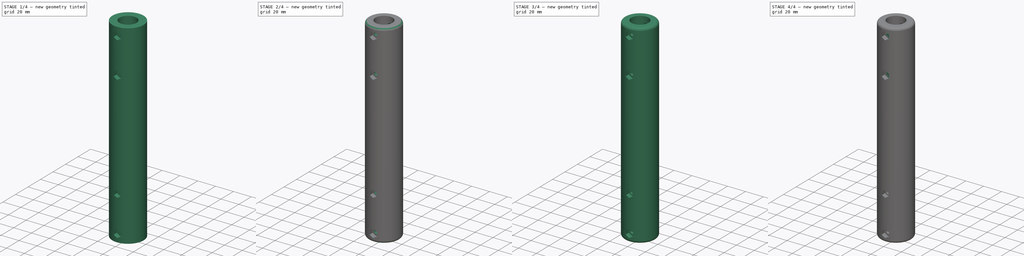
[diagram: build sequence overview — one tinted view per stage of 4, left to right]
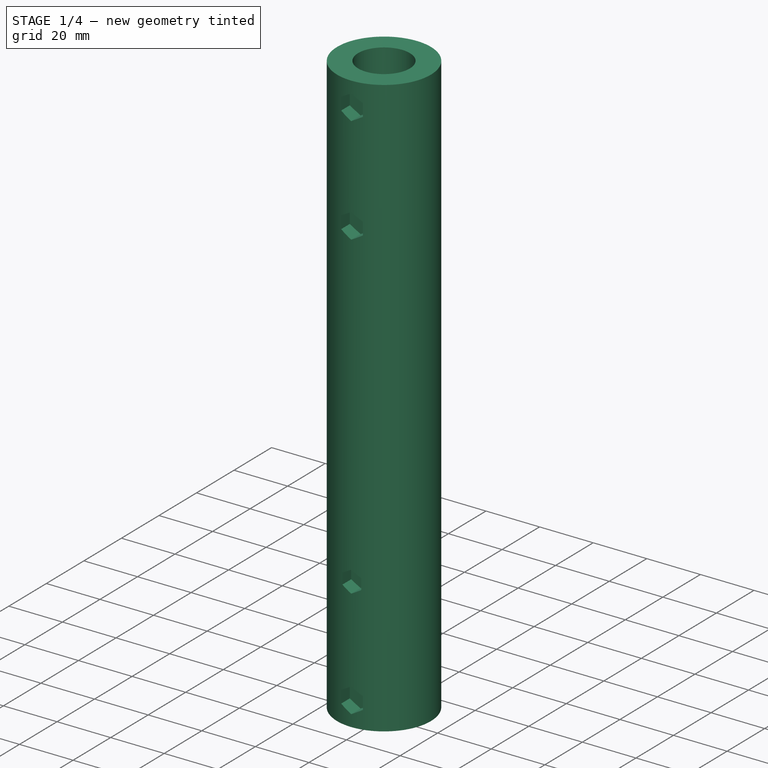
[diagram: stage 1 of 4 — iso view after this stage's code; geometry added in this stage tinted green]
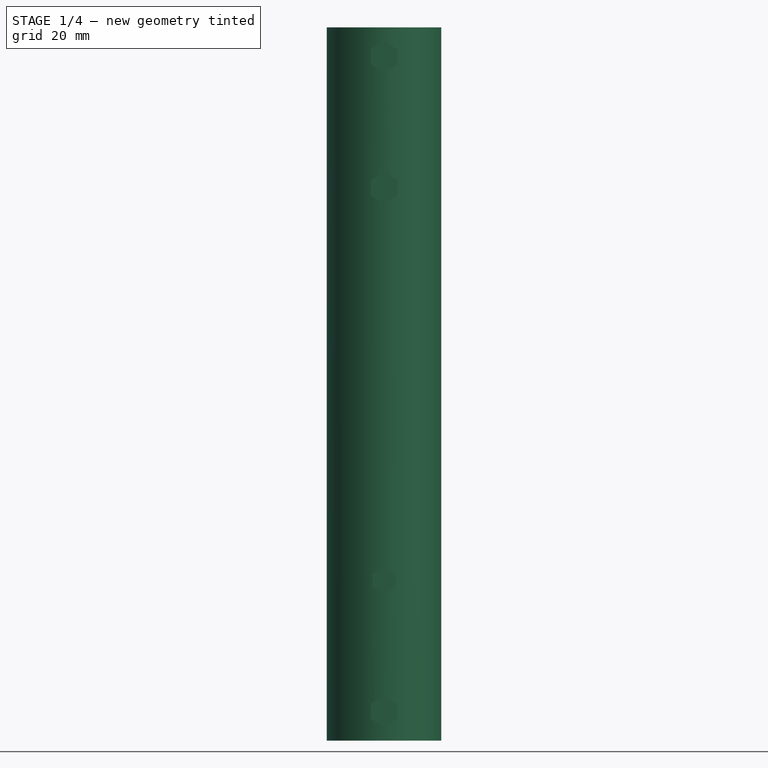
[diagram: stage 1 of 4 — front view after this stage's code; geometry added in this stage tinted green]
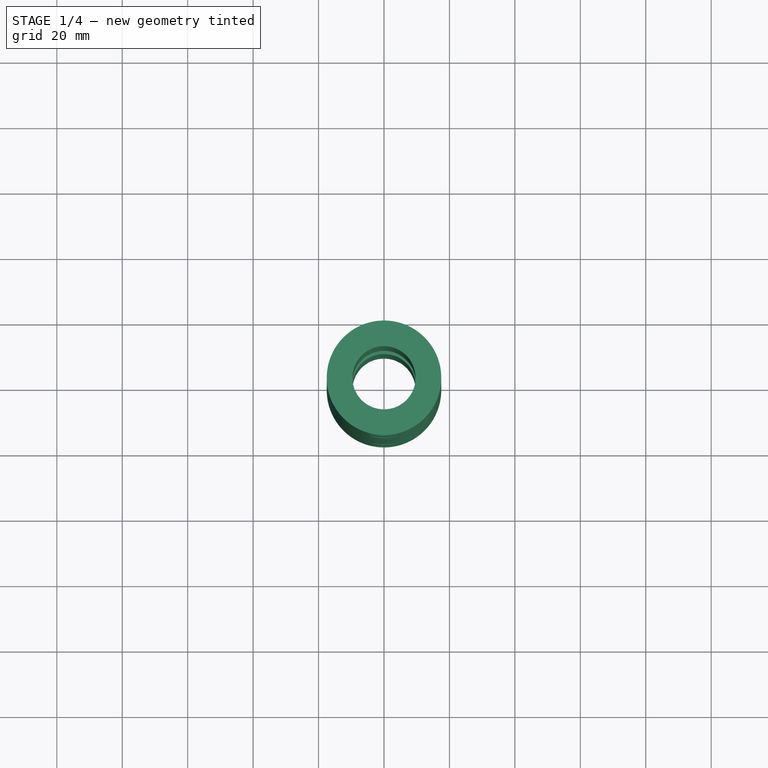
[diagram: stage 1 of 4 — top view after this stage's code; geometry added in this stage tinted green]
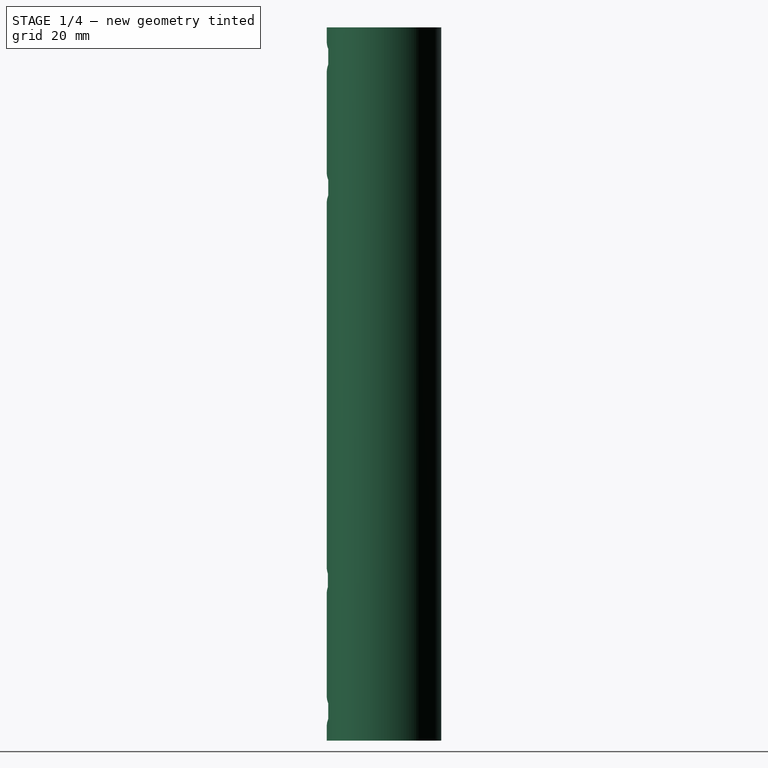
[diagram: stage 1 of 4 — right view after this stage's code; geometry added in this stage tinted green]
FCSTD DOCUMENT  (FreeCAD 1.0R39109 (Git))
Label: pvc enhancement
License: All rights reserved
LicenseURL: https://en.wikipedia.org/wiki/All_rights_reserved
objects: Sketcher::SketchObject×6, PartDesign::Pocket×4, Part::FeaturePython×3, PartDesign::Pad×2, PartDesign::Fillet×2, PartDesign::Plane×2, PartDesign::Body×2, App::DocumentObjectGroup×1
note: 43 computed .brp shape members not serialized (recipe doc carries the construction recipe); baked Part::Feature solids carry a one-line shape summary decoded from their .brp

FEATURE [PartDesign::Body] Body
  AllowCompound = false
  Group = -> [Sketch,Pad,Fillet,DatumPlane,Sketch001,Pocket]
  Origin = -> Origin
  Tip = -> Pocket
FEATURE [Sketcher::SketchObject] Sketch002
  ArcFitTolerance = 1e-06
  AttachmentSupport = -> [XY_Plane001]
  FullyConstrained = true
  MakeInternals = false
  MapMode = 5
  sketch-geometry (2):
    g0: Circle CenterX=0 CenterY=0 CenterZ=0 NormalX=0 NormalY=0 NormalZ=1 AngleXU=0 Radius=9.65
    g1: Circle CenterX=0 CenterY=0 CenterZ=0 NormalX=0 NormalY=0 NormalZ=1 AngleXU=0 Radius=17.5
  constraints (4):
    c: Coincident(g0,g-1)
    c: Diameter(g0) = 19.3
    c: Coincident(g1,g0)
    c: Diameter(g1) = 35
FEATURE [PartDesign::Pad] Pad001
  Direction = (0,0,1)
  Length = 109
  Length2 = 109
  Profile = -> Sketch002
  ReferenceAxis = -> Sketch002 [N_Axis]
  Refine = true
  Suppressed = false
  Type = 4
  expr: Length = 109
FEATURE [Sketcher::SketchObject] Sketch003
  ArcFitTolerance = 1e-06
  AttachmentSupport = -> [XY_Plane001]
  FullyConstrained = true
  MakeInternals = false
  MapMode = 5
  sketch-geometry (2):
    g0: Circle CenterX=0 CenterY=0 CenterZ=0 NormalX=0 NormalY=0 NormalZ=1 AngleXU=0 Radius=6
    g1: Circle CenterX=0 CenterY=0 CenterZ=0 NormalX=0 NormalY=0 NormalZ=1 AngleXU=0 Radius=11.25
  constraints (4):
    c: Coincident(g0,g-1)
    c: Coincident(g1,g0)
    c: Diameter(g0) = 12
    c: Diameter(g1) = 22.5
FEATURE [PartDesign::Pocket] Pocket001
  BaseFeature = -> Pad001
  Direction = (0,0,-1)
  Length = 28
  Length2 = 28
  Profile = -> Sketch003
  ReferenceAxis = -> Sketch003 [N_Axis]
  Refine = true
  Suppressed = false
  Type = 4
FEATURE [PartDesign::Plane] DatumPlane001
  AttachmentOffset = pos=(0,0,17.5) rot=(0,0,1;0rad)
  AttachmentSupport = -> [XZ_Plane001]
  Length = 70.8806
  MapMode = 5
  Placement = pos=(0,-17.5,3.9e-15) rot=(1,0,0;1.5708rad)
  ResizeMode = 0
  Width = 238.881
  expr: .AttachmentOffset.Base.z = 35 / 2
FEATURE [Sketcher::SketchObject] Sketch004
  ArcFitTolerance = 1e-06
  AttachmentSupport = -> [DatumPlane001]
  FullyConstrained = true
  MakeInternals = false
  MapMode = 5
  Placement = pos=(0,-17.5,3.9e-15) rot=(1,0,0;1.5708rad)
  sketch-geometry (28):
    g0: LineSegment StartX=0 StartY=95.3333 StartZ=0 EndX=4.04145 EndY=97.6667 EndZ=0
    g1: LineSegment StartX=4.04145 StartY=97.6667 StartZ=0 EndX=4.04145 EndY=102.333 EndZ=0
    g2: LineSegment StartX=4.04145 StartY=102.333 StartZ=0 EndX=9e-16 EndY=104.667 EndZ=0
    g3: LineSegment StartX=9e-16 StartY=104.667 StartZ=0 EndX=-4.04145 EndY=102.333 EndZ=0
    g4: LineSegment StartX=-4.04145 StartY=102.333 StartZ=0 EndX=-4.04145 EndY=97.6667 EndZ=0
    g5: LineSegment StartX=-4.04145 StartY=97.6667 StartZ=0 EndX=0 EndY=95.3333 EndZ=0
    g6: Circle [constr] CenterX=0 CenterY=100 CenterZ=0 NormalX=0 NormalY=0 NormalZ=1 AngleXU=0 Radius=4.66667
    g7: LineSegment StartX=4.04145 StartY=57.6667 StartZ=0 EndX=4.04145 EndY=62.3333 EndZ=0
    g8: LineSegment StartX=4.04145 StartY=62.3333 StartZ=0 EndX=0 EndY=64.6667 EndZ=0
    g9: LineSegment StartX=0 StartY=64.6667 StartZ=0 EndX=-4.04145 EndY=62.3333 EndZ=0
    g10: LineSegment StartX=-4.04145 StartY=62.3333 StartZ=0 EndX=-4.04145 EndY=57.6667 EndZ=0
    g11: LineSegment StartX=-4.04145 StartY=57.6667 StartZ=0 EndX=1.3971e-11 EndY=55.3333 EndZ=0
    g12: LineSegment StartX=1.3971e-11 StartY=55.3333 StartZ=0 EndX=4.04145 EndY=57.6667 EndZ=0
    g13: Circle [constr] CenterX=0 CenterY=60 CenterZ=0 NormalX=0 NormalY=0 NormalZ=1 AngleXU=0 Radius=4.66667
    g14: LineSegment StartX=2.09e-14 StartY=-64.0415 StartZ=0 EndX=3.5 EndY=-62.0207 EndZ=0
    g15: LineSegment StartX=3.5 StartY=-62.0207 StartZ=0 EndX=3.5 EndY=-57.9793 EndZ=0
    g16: LineSegment StartX=3.5 StartY=-57.9793 StartZ=0 EndX=0 EndY=-55.9585 EndZ=0
    g17: LineSegment StartX=0 StartY=-55.9585 StartZ=0 EndX=-3.5 EndY=-57.9793 EndZ=0
    g18: LineSegment StartX=-3.5 StartY=-57.9793 StartZ=0 EndX=-3.5 EndY=-62.0207 EndZ=0
    g19: LineSegment StartX=-3.5 StartY=-62.0207 StartZ=0 EndX=2.09e-14 EndY=-64.0415 EndZ=0
    g20: Circle [constr] CenterX=0 CenterY=-60 CenterZ=0 NormalX=0 NormalY=0 NormalZ=1 AngleXU=0 Radius=4.04145
    g21: LineSegment StartX=4.04145 StartY=-102.333 StartZ=0 EndX=4.04145 EndY=-97.6667 EndZ=0
    g22: LineSegment StartX=4.04145 StartY=-97.6667 StartZ=0 EndX=1.43e-13 EndY=-95.3333 EndZ=0
    g23: LineSegment StartX=1.43e-13 StartY=-95.3333 StartZ=0 EndX=-4.04145 EndY=-97.6667 EndZ=0
    g24: LineSegment StartX=-4.04145 StartY=-97.6667 StartZ=0 EndX=-4.04145 EndY=-102.333 EndZ=0
    g25: LineSegment StartX=-4.04145 StartY=-102.333 StartZ=0 EndX=-8.216e-13 EndY=-104.667 EndZ=0
    g26: LineSegment StartX=-8.216e-13 StartY=-104.667 StartZ=0 EndX=4.04145 EndY=-102.333 EndZ=0
    g27: Circle [constr] CenterX=-2.03e-13 CenterY=-100 CenterZ=0 NormalX=0 NormalY=0 NormalZ=1 AngleXU=0 Radius=4.66667
  constraints (68):
    c: Coincident(g0,g1)
    c: Coincident(g1,g2)
    c: Coincident(g2,g3)
    c: Coincident(g3,g4)
    c: Coincident(g4,g5)
    c: Coincident(g5,g0)
    c: Equal(g0, g1-g5) x5
    c: PointOnObject(g0,g6)
    c: PointOnObject(g1,g6)
    c: PointOnObject(g2,g6)
    c: PointOnObject(g3,g6)
    c: PointOnObject(g4,g6)
    c: PointOnObject(g5,g6)
    c: PointOnObject(g6,g-2)
    c: DistanceY(g-1,g6) = 100
    c: Coincident(g7,g8)
    c: Coincident(g8,g9)
    c: Coincident(g9,g10)
    c: Coincident(g10,g11)
    c: Coincident(g11,g12)
    c: Coincident(g12,g7)
    c: Equal(g7, g8-g12) x5
    c: PointOnObject(g7,g13)
    c: PointOnObject(g8,g13)
    c: PointOnObject(g9,g13)
    c: PointOnObject(g10,g13)
    c: PointOnObject(g11,g13)
    c: PointOnObject(g12,g13)
    c: PointOnObject(g13,g-2)
    c: DistanceY(g-1,g13) = 60
    c: DistanceY(g7,g8) = 7
    c: DistanceY(g0,g1) = 7
    c: PointOnObject(g0,g-2)
    c: PointOnObject(g8,g-2)
    c: Coincident(g14,g15)
    c: Coincident(g15,g16)
    c: Coincident(g16,g17)
    c: Coincident(g17,g18)
    c: Coincident(g18,g19)
    c: Coincident(g19,g14)
    c: Equal(g14, g15-g19) x5
    c: PointOnObject(g14,g20)
    c: PointOnObject(g15,g20)
    c: PointOnObject(g16,g20)
    c: PointOnObject(g17,g20)
    c: PointOnObject(g18,g20)
    c: PointOnObject(g19,g20)
    c: PointOnObject(g20,g-2)
    c: Coincident(g21,g22)
    c: Coincident(g22,g23)
    c: Coincident(g23,g24)
    c: Coincident(g24,g25)
    c: Coincident(g25,g26)
    c: Coincident(g26,g21)
    c: Equal(g21, g22-g26) x5
    c: PointOnObject(g21,g27)
    c: PointOnObject(g22,g27)
    c: PointOnObject(g23,g27)
    c: PointOnObject(g24,g27)
    c: PointOnObject(g25,g27)
    c: PointOnObject(g26,g27)
    c: PointOnObject(g27,g-2)
    c: Distance(g15,g14) = 7
    c: DistanceY(g21,g22) = 7
    c: Distance(g-1,g20) = 60
    c: DistanceY(g27,g-1) = 100
    c: PointOnObject(g16,g-2)
    c: PointOnObject(g22,g-2)
FEATURE [PartDesign::Pocket] Pocket002
  BaseFeature = -> Pocket001
  Direction = (0,1,-2e-16)
  Length = 5
  Length2 = 5
  Profile = -> Sketch004
  ReferenceAxis = -> Sketch004 [N_Axis]
  Refine = true
  Suppressed = false
  Type = 0
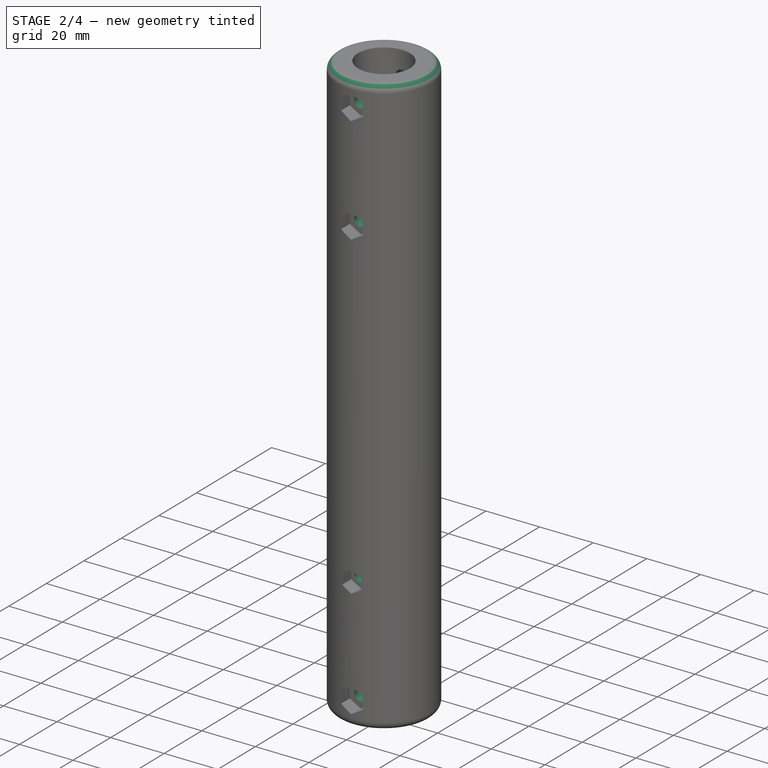
[diagram: stage 2 of 4 — iso view after this stage's code; geometry added in this stage tinted green]
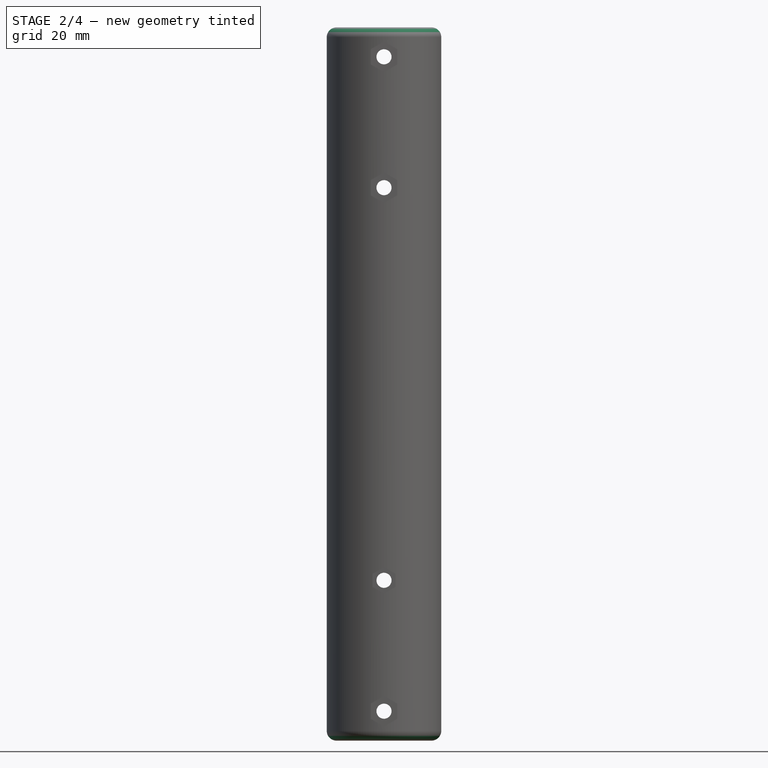
[diagram: stage 2 of 4 — front view after this stage's code; geometry added in this stage tinted green]
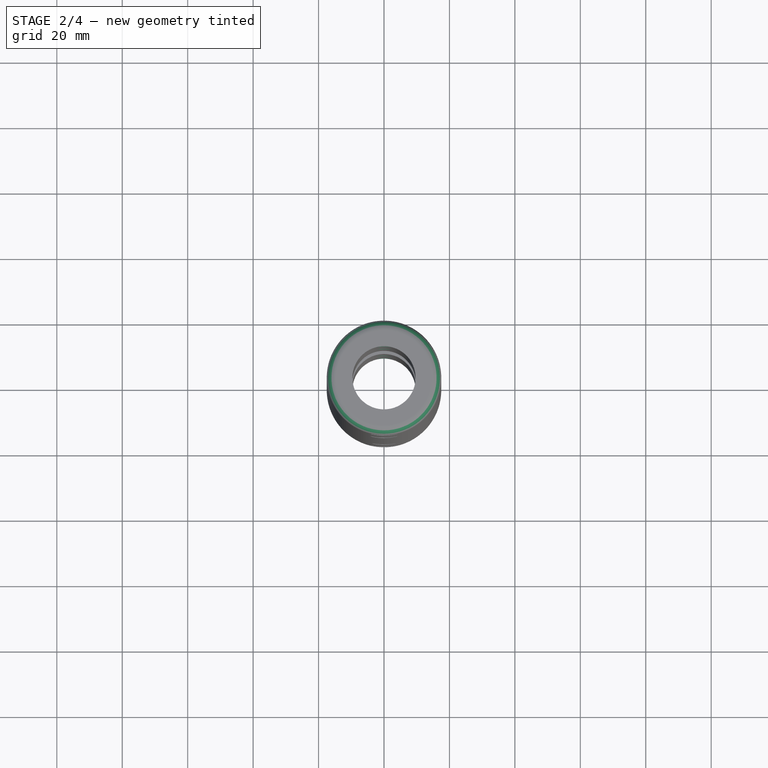
[diagram: stage 2 of 4 — top view after this stage's code; geometry added in this stage tinted green]
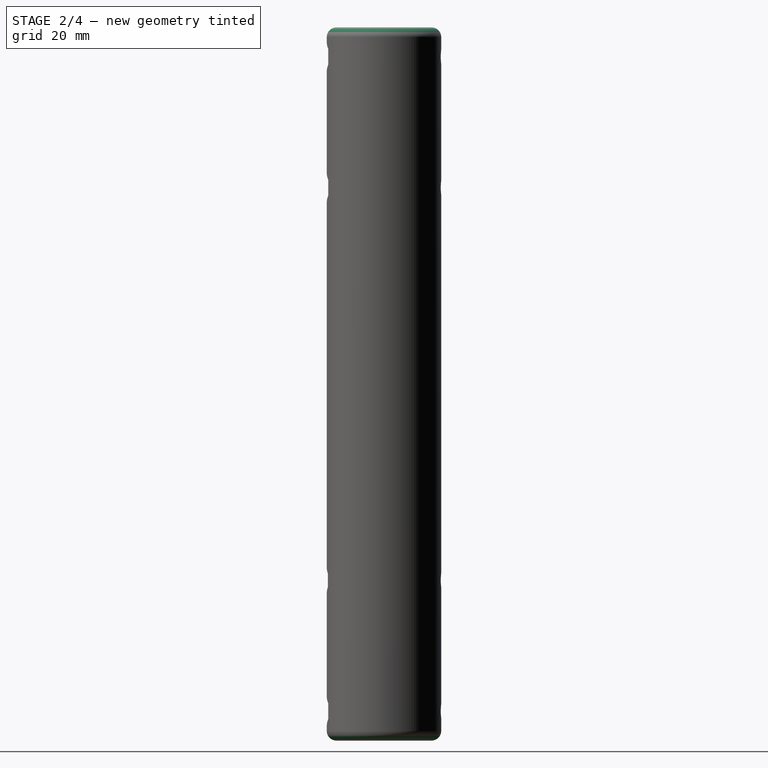
[diagram: stage 2 of 4 — right view after this stage's code; geometry added in this stage tinted green]
FEATURE [Sketcher::SketchObject] Sketch005
  ArcFitTolerance = 1e-06
  AttachmentSupport = -> [XZ_Plane001]
  FullyConstrained = true
  MakeInternals = false
  MapMode = 5
  Placement = pos=(0,0,0) rot=(1,0,0;1.5708rad)
  sketch-geometry (4):
    g0: Circle CenterX=0 CenterY=60 CenterZ=0 NormalX=0 NormalY=0 NormalZ=1 AngleXU=0 Radius=2.3
    g1: Circle CenterX=0 CenterY=100 CenterZ=0 NormalX=0 NormalY=0 NormalZ=1 AngleXU=0 Radius=2.3
    g2: Circle CenterX=0 CenterY=-60 CenterZ=0 NormalX=0 NormalY=0 NormalZ=1 AngleXU=0 Radius=2.3
    g3: Circle CenterX=0 CenterY=-100 CenterZ=0 NormalX=0 NormalY=0 NormalZ=1 AngleXU=0 Radius=2.3
  constraints (12):
    c: PointOnObject(g0,g-2)
    c: PointOnObject(g1,g-2)
    c: PointOnObject(g2,g-2)
    c: PointOnObject(g3,g-2)
    c: Diameter(g1) = 4.6
    c: Equal(g1,g0)
    c: Equal(g0,g2)
    c: Equal(g2,g3)
    c: DistanceY(g-1,g0) = 60
    c: DistanceY(g2,g-1) = 60
    c: DistanceY(g-1,g1) = 100
    c: DistanceY(g3,g-1) = 100
FEATURE [PartDesign::Pocket] Pocket003
  BaseFeature = -> Pocket002
  Direction = (0,1,-2e-16)
  Length = 50
  Length2 = 50
  Profile = -> Sketch005
  ReferenceAxis = -> Sketch005 [N_Axis]
  Refine = true
  Suppressed = false
  Type = 4
FEATURE [PartDesign::Fillet] Fillet001
  Base = -> Pocket003 [Edge2,Edge3]
  BaseFeature = -> Pocket003
  Radius = 3
  Refine = true
  SupportTransform = false
  Suppressed = false
  UseAllEdges = false
FEATURE [PartDesign::Body] Body001  label="extension_enforcement"
  AllowCompound = false
  Group = -> [Sketch002,Pad001,Sketch003,Pocket001,DatumPlane001,Sketch004,Pocket002,Sketch005,Pocket003,Fillet001]
  Origin = -> Origin001
  Tip = -> Fillet001
FEATURE [Part::FeaturePython] Slice  # WARN: FeaturePython — macro-defined, semantics opaque (R4)
  Base = -> Fillet001
  Mode = 1
  Tolerance = 0
  Tools = -> [XZ_Plane001]
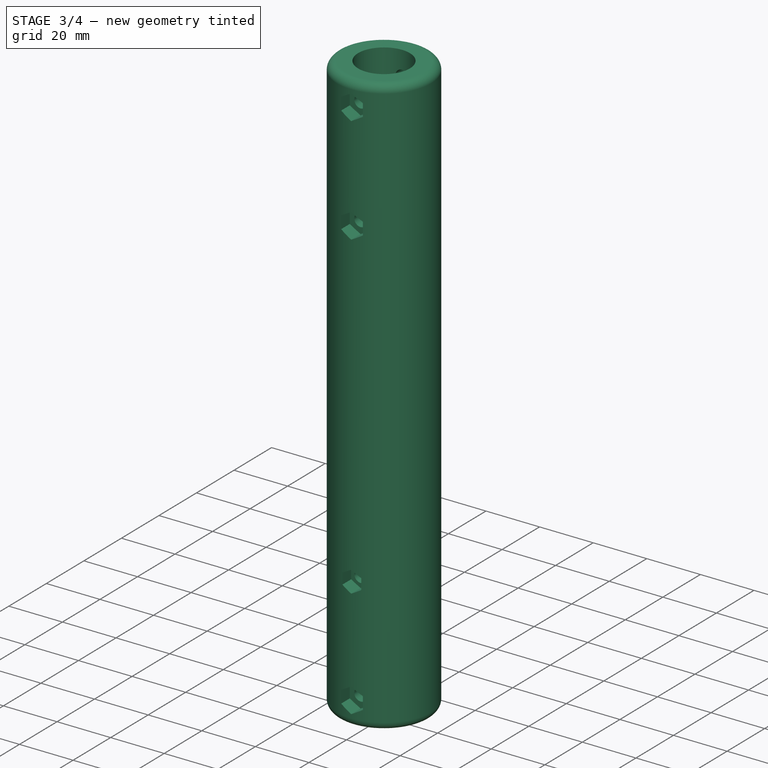
[diagram: stage 3 of 4 — iso view after this stage's code; geometry added in this stage tinted green]
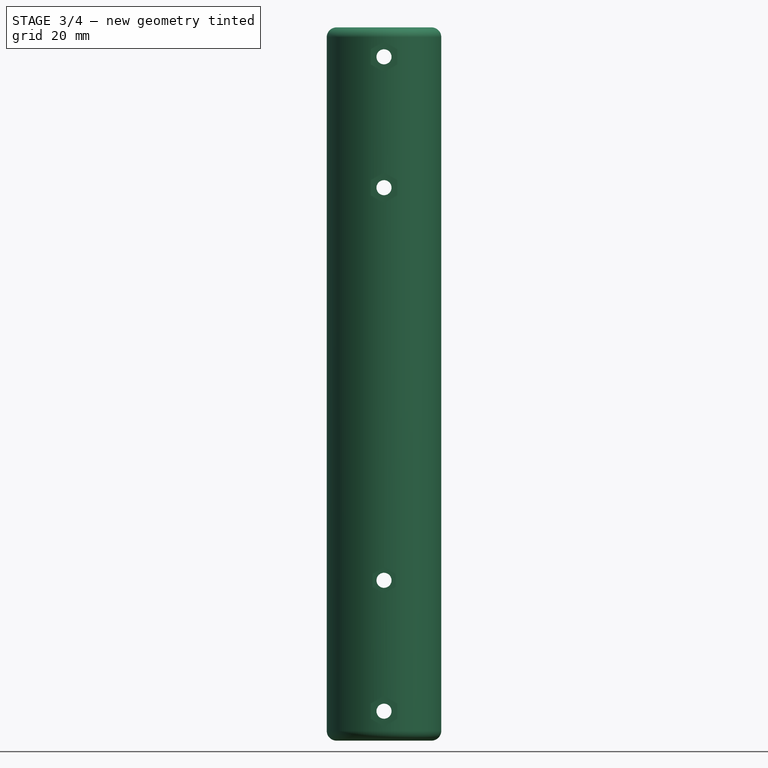
[diagram: stage 3 of 4 — front view after this stage's code; geometry added in this stage tinted green]
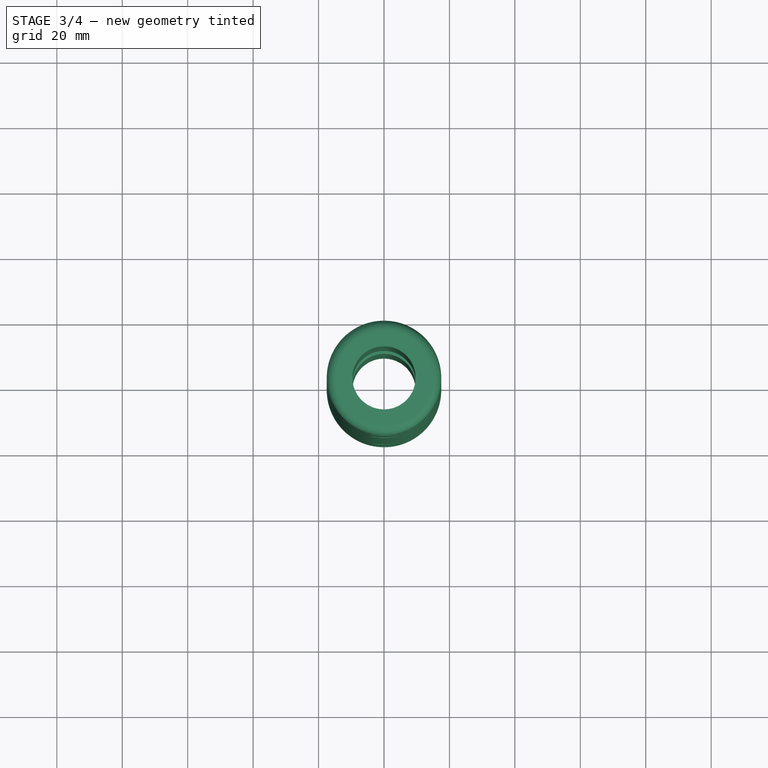
[diagram: stage 3 of 4 — top view after this stage's code; geometry added in this stage tinted green]
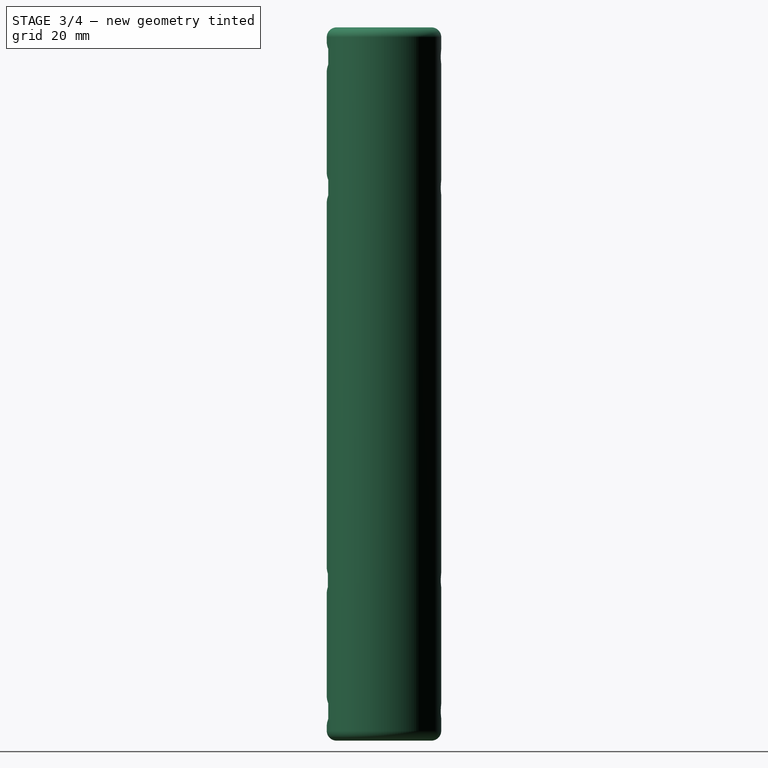
[diagram: stage 3 of 4 — right view after this stage's code; geometry added in this stage tinted green]
FEATURE [Part::FeaturePython] Slice_child0  label="Slice.0"  # WARN: FeaturePython — macro-defined, semantics opaque (R4)
  Base = -> Slice
  FilterType = 1
  Invert = false
  OverrideMaxVal = 0
  WindowFrom = 80
  WindowTo = 100
  items = 0
FEATURE [Part::FeaturePython] Slice_child1  label="Slice.1"  # WARN: FeaturePython — macro-defined, semantics opaque (R4)
  Base = -> Slice
  FilterType = 1
  Invert = false
  OverrideMaxVal = 0
  WindowFrom = 80
  WindowTo = 100
  items = 1
FEATURE [App::DocumentObjectGroup] GrExplode_Slice  label="Exploded Slice"
  Group = -> [Slice_child0,Slice_child1]
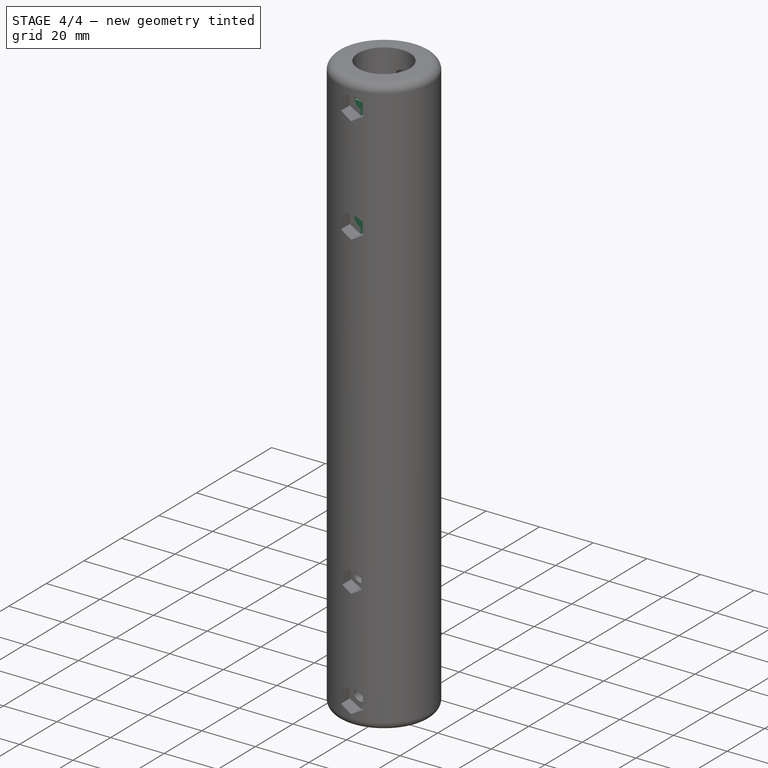
[diagram: stage 4 of 4 — iso view after this stage's code; geometry added in this stage tinted green]
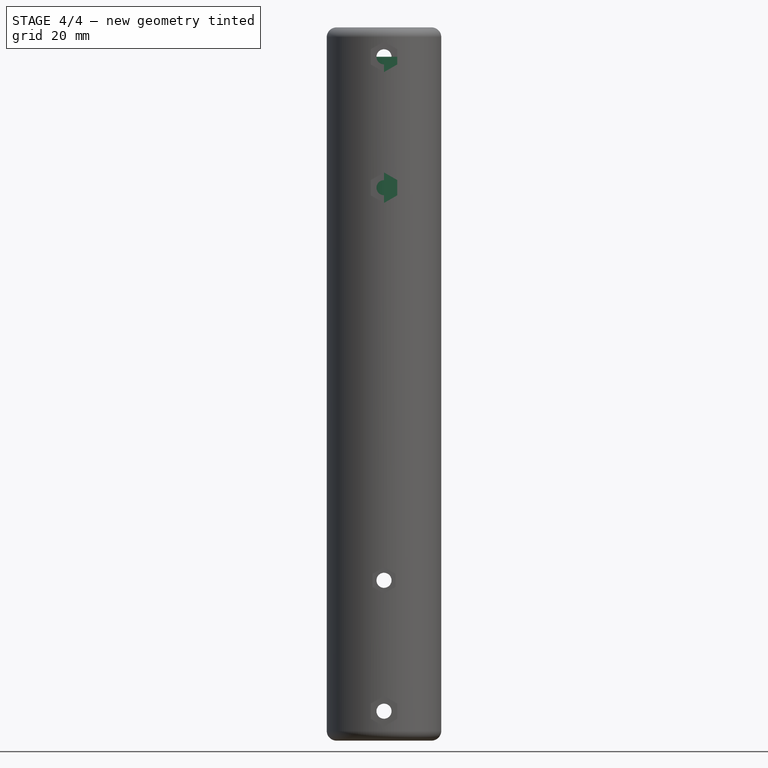
[diagram: stage 4 of 4 — front view after this stage's code; geometry added in this stage tinted green]
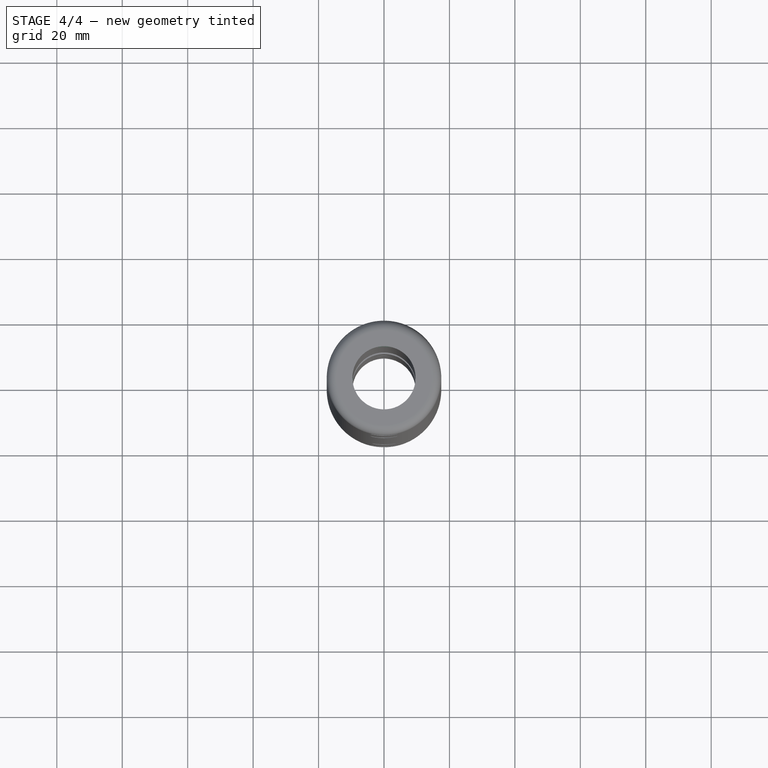
[diagram: stage 4 of 4 — top view after this stage's code; geometry added in this stage tinted green]
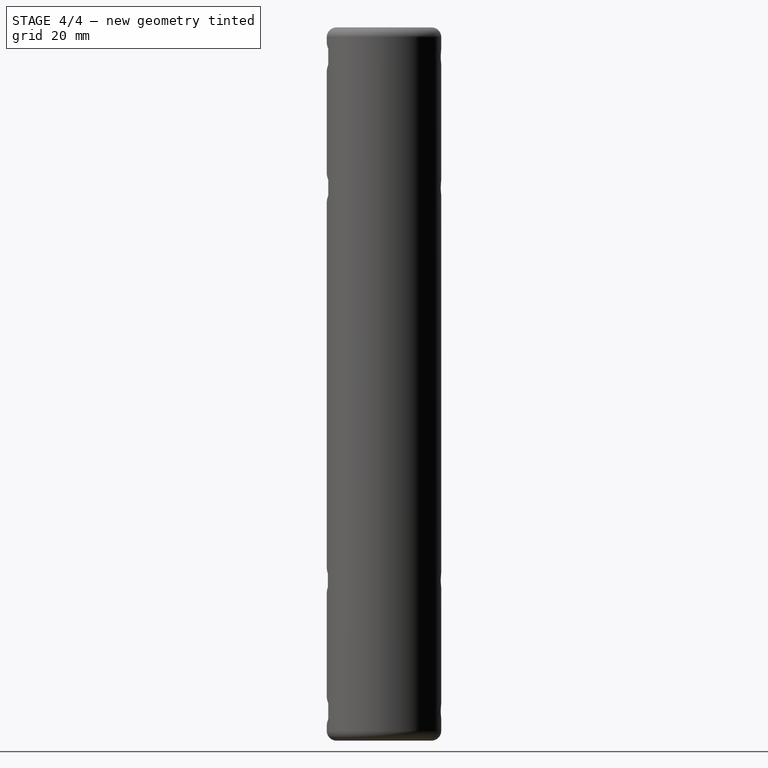
[diagram: stage 4 of 4 — right view after this stage's code; geometry added in this stage tinted green]
FEATURE [Sketcher::SketchObject] Sketch
  ArcFitTolerance = 1e-06
  AttachmentSupport = -> [XY_Plane]
  FullyConstrained = true
  MakeInternals = false
  MapMode = 5
  expr: Constraints[9] = 19 / 2 + 1
  sketch-geometry (5):
    g0: Circle CenterX=0 CenterY=0 CenterZ=0 NormalX=0 NormalY=0 NormalZ=1 AngleXU=0 Radius=9.65
    g1: ArcOfCircle CenterX=0 CenterY=0 CenterZ=0 NormalX=0 NormalY=0 NormalZ=1 AngleXU=0 Radius=12.5 StartAngle=1.5708 EndAngle=4.71239
    g2: LineSegment StartX=8e-16 StartY=12.5 StartZ=0 EndX=10.5 EndY=12.5 EndZ=0
    g3: LineSegment StartX=-2.3e-15 StartY=-12.5 StartZ=0 EndX=10.5 EndY=-12.5 EndZ=0
    g4: LineSegment StartX=10.5 StartY=12.5 StartZ=0 EndX=10.5 EndY=-12.5 EndZ=0
  constraints (13):
    c: Coincident(g0,g-1)
    c: Diameter(g0) = 19.3
    c: DistanceY(g0,g2) = 12.5
    c: Coincident(g1,g0)
    c: PointOnObject(g1,g-2)
    c: PointOnObject(g1,g-2)
    c: Tangent(g2,g1) = 1.5708
    c: Coincident(g3,g1)
    c: Vertical(g4)
    c: Distance(g0,g4) = 10.5
    c: Horizontal(g3)
    c: Coincident(g2,g4)
    c: Coincident(g3,g4)
FEATURE [PartDesign::Pad] Pad
  Direction = (0,0,1)
  Length = 100
  Length2 = 10
  Profile = -> Sketch
  ReferenceAxis = -> Sketch [N_Axis]
  Refine = true
  Suppressed = false
  Type = 0
FEATURE [PartDesign::Fillet] Fillet
  Base = -> Pad [Edge5,Edge8]
  BaseFeature = -> Pad
  Radius = 3
  Refine = true
  SupportTransform = false
  Suppressed = false
  UseAllEdges = false
FEATURE [PartDesign::Plane] DatumPlane
  AttachmentOffset = pos=(12.5,0,0) rot=(0,1,0;1.5708rad)
  AttachmentSupport = -> [Fillet]
  Length = 140.811
  MapMode = 11
  Placement = pos=(-12.5,0,100) rot=(-0.707107,0,0.707107;3.14159rad)
  ResizeMode = 0
  Width = 65.8114
FEATURE [Sketcher::SketchObject] Sketch001
  ArcFitTolerance = 1e-06
  AttachmentSupport = -> [DatumPlane]
  FullyConstrained = true
  MakeInternals = false
  MapMode = 5
  Placement = pos=(-12.5,0,100) rot=(0.707107,0,-0.707107;3.14159rad)
  sketch-geometry (14):
    g0: LineSegment StartX=12.9793 StartY=-3.5 StartZ=0 EndX=17.0207 EndY=-3.5 EndZ=0
    g1: LineSegment StartX=17.0207 StartY=-3.5 StartZ=0 EndX=19.0415 EndY=0 EndZ=0
    g2: LineSegment StartX=19.0415 StartY=0 StartZ=0 EndX=17.0207 EndY=3.5 EndZ=0
    g3: LineSegment StartX=17.0207 StartY=3.5 StartZ=0 EndX=12.9793 EndY=3.5 EndZ=0
    g4: LineSegment StartX=12.9793 StartY=3.5 StartZ=0 EndX=10.9585 EndY=0 EndZ=0
    g5: LineSegment StartX=10.9585 StartY=0 StartZ=0 EndX=12.9793 EndY=-3.5 EndZ=0
    g6: Circle [constr] CenterX=15 CenterY=0 CenterZ=0 NormalX=0 NormalY=0 NormalZ=1 AngleXU=0 Radius=4.04145
    g7: LineSegment StartX=87.0207 StartY=-3.5 StartZ=0 EndX=89.0415 EndY=0 EndZ=0
    g8: LineSegment StartX=89.0415 StartY=0 StartZ=0 EndX=87.0207 EndY=3.5 EndZ=0
    g9: LineSegment StartX=87.0207 StartY=3.5 StartZ=0 EndX=82.9793 EndY=3.5 EndZ=0
    g10: LineSegment StartX=82.9793 StartY=3.5 StartZ=0 EndX=80.9585 EndY=-4.161e-13 EndZ=0
    g11: LineSegment StartX=80.9585 StartY=-4.161e-13 StartZ=0 EndX=82.9793 EndY=-3.5 EndZ=0
    g12: LineSegment StartX=82.9793 StartY=-3.5 StartZ=0 EndX=87.0207 EndY=-3.5 EndZ=0
    g13: Circle [constr] CenterX=85 CenterY=0 CenterZ=0 NormalX=0 NormalY=0 NormalZ=1 AngleXU=0 Radius=4.04145
  constraints (34):
    c: Coincident(g0,g1)
    c: Coincident(g1,g2)
    c: Coincident(g2,g3)
    c: Coincident(g3,g4)
    c: Coincident(g4,g5)
    c: Coincident(g5,g0)
    c: Equal(g0, g1-g5) x5
    c: PointOnObject(g0,g6)
    c: PointOnObject(g1,g6)
    c: PointOnObject(g2,g6)
    c: PointOnObject(g3,g6)
    c: PointOnObject(g4,g6)
    c: PointOnObject(g5,g6)
    c: PointOnObject(g6,g-1)
    c: Distance(g0,g1) = 7
    c: PointOnObject(g1,g-1)
    c: DistanceX(g-1,g6) = 15
    c: Coincident(g7,g8)
    c: Coincident(g8,g9)
    c: Coincident(g9,g10)
    c: Coincident(g10,g11)
    c: Coincident(g11,g12)
    c: Coincident(g12,g7)
    c: Equal(g7, g8-g12) x5
    c: PointOnObject(g7,g13)
    c: PointOnObject(g8,g13)
    c: PointOnObject(g9,g13)
    c: PointOnObject(g10,g13)
    c: PointOnObject(g11,g13)
    c: PointOnObject(g12,g13)
    c: PointOnObject(g13,g-1)
    c: DistanceY(g7,g8) = 7
    c: PointOnObject(g7,g-1)
    c: DistanceX(g6,g13) = 70
FEATURE [PartDesign::Pocket] Pocket
  BaseFeature = -> Fillet
  Direction = (1,0,2e-16)
  Length = 3
  Length2 = 5
  Profile = -> Sketch001
  ReferenceAxis = -> Sketch001 [N_Axis]
  Refine = true
  Suppressed = false
  Type = 0
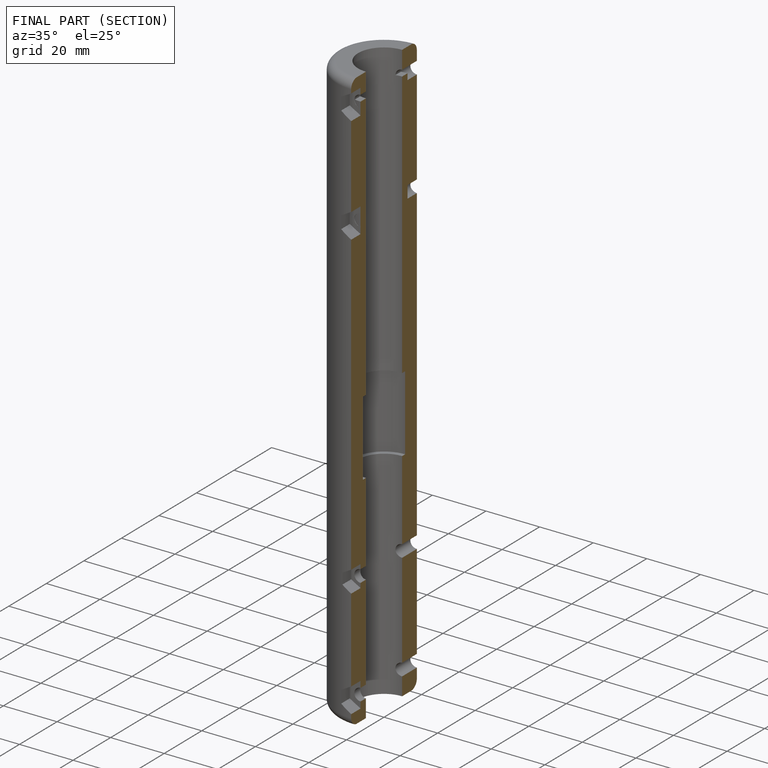
[diagram: finished part — half-section view (interior)]
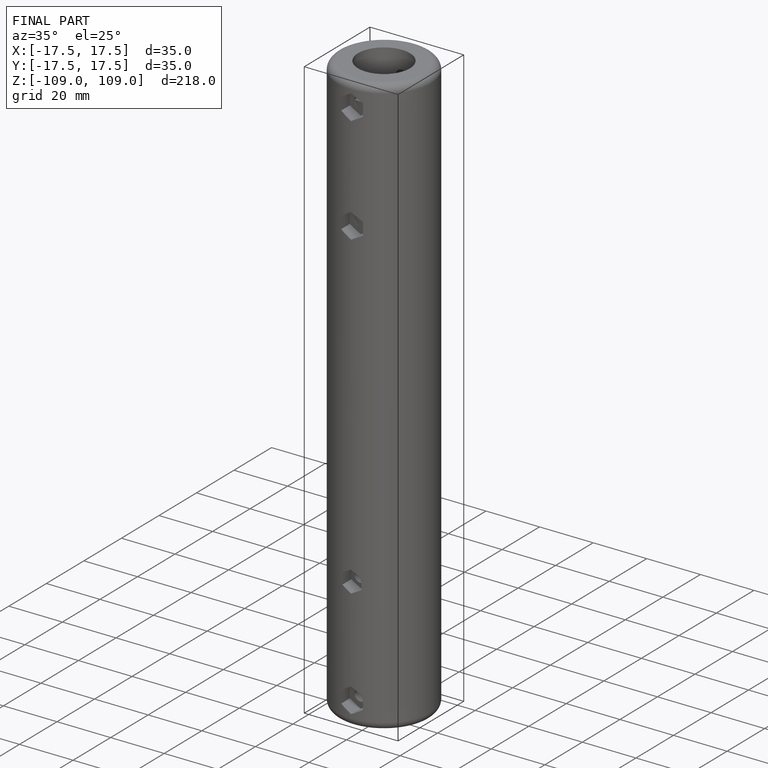
[diagram: finished part — iso view with bounding-box wireframe]
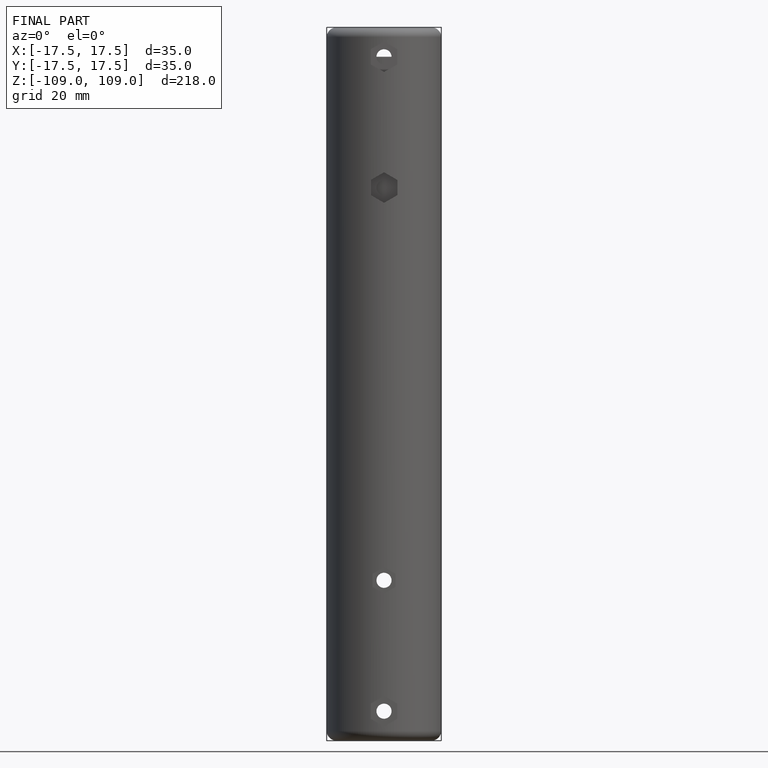
[diagram: finished part — front view with bounding-box wireframe]
